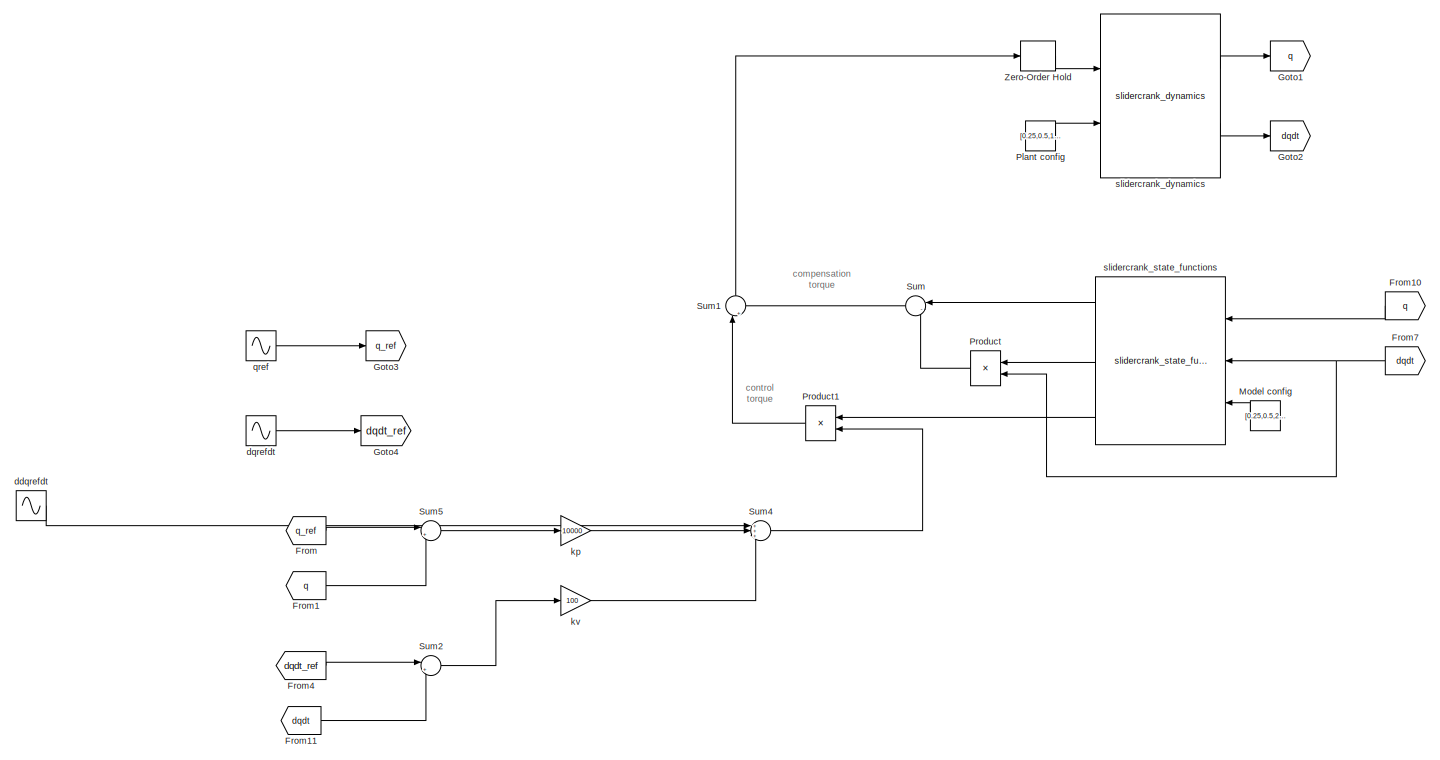
[diagram: root canvas - part 1/2, center side, full height]
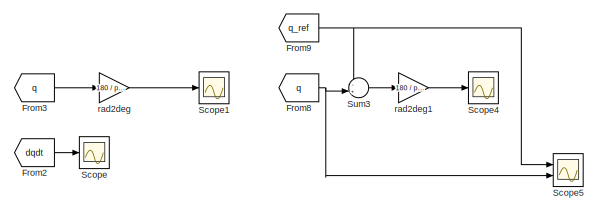
[diagram: root canvas - part 2/2, middle right region]
MODEL slx_b49f473e1fc3
KIND model
CONFIG AbsTol = auto
CONFIG EnableMultiTasking = off
CONFIG FixedStep = auto
CONFIG MaxStep = 1e-5
CONFIG MinStep = auto
CONFIG RelTol = 1e-3
CONFIG SampleTimeConstraint = Unconstrained
CONFIG Solver = VariableStepAuto
CONFIG SolverName = VariableStepAuto
CONFIG StartTime = 0.0
CONFIG StopTime = 5
BLOCK [From] From
  GotoTag = q_ref
BLOCK [From] From1
  GotoTag = q
BLOCK [From] From10
  GotoTag = q
BLOCK [From] From11
  GotoTag = dqdt
BLOCK [From] From2
  GotoTag = dqdt
BLOCK [From] From3
  GotoTag = q
BLOCK [From] From4
  GotoTag = dqdt_ref
BLOCK [From] From7
  GotoTag = dqdt
BLOCK [From] From8
  GotoTag = q
BLOCK [From] From9
  GotoTag = q_ref
BLOCK [Goto] Goto1
  GotoTag = q
BLOCK [Goto] Goto2
  GotoTag = dqdt
BLOCK [Goto] Goto3
  GotoTag = q_ref
BLOCK [Goto] Goto4
  GotoTag = dqdt_ref
BLOCK [Constant] Model config
  Value = [0.25,0.5,2,3,1]
BLOCK [Constant] Plant config
  Value = [0.25,0.5,1,2,0.5]
BLOCK [Product] Product
  InputSameDT = off
  OutDataTypeStr = Inherit: Inherit via internal rule
  Ports = [2, 1]
  RndMeth = Floor
  SaturateOnIntegerOverflow = off
BLOCK [Product] Product1
  InputSameDT = off
  OutDataTypeStr = Inherit: Inherit via internal rule
  Ports = [2, 1]
  RndMeth = Floor
  SaturateOnIntegerOverflow = off
BLOCK [Scope] Scope
  NumInputPorts = 1
  Ports = [1]
  ScopeSpecificationString = Simulink.scopes.TimeScopeBlockCfg('CurrentConfiguration', extmgr.ConfigurationSet(extmgr.Configuration('Core','General UI',true),extmgr.Configuration('Core','Source UI',true),extmgr.Configuration('Sources','WiredSimulink',true),extmgr.Configuration('Visuals','Time Domain',true,'SerializedDisplays',{struct('MinYLimReal','-13.56113','MaxYLimReal','22.05021','YLabelReal','','MinYLimMag','0.00000','Ma...<+1396ch>
BLOCK [Scope] Scope1
  NumInputPorts = 1
  Ports = [1]
  ScopeSpecificationString = Simulink.scopes.TimeScopeBlockCfg('CurrentConfiguration', extmgr.ConfigurationSet(extmgr.Configuration('Core','General UI',true),extmgr.Configuration('Core','Source UI',true),extmgr.Configuration('Sources','WiredSimulink',true,'DataLoggingVariableName','ScopeData1'),extmgr.Configuration('Visuals','Time Domain',true,'SerializedDisplays',{struct('MinYLimReal','-79.91159','MaxYLimReal','103.04022','Y...<+1424ch>
BLOCK [Scope] Scope4
  NumInputPorts = 1
  Ports = [1]
  ScopeSpecificationString = Simulink.scopes.TimeScopeBlockCfg('CurrentConfiguration', extmgr.ConfigurationSet(extmgr.Configuration('Core','General UI',true),extmgr.Configuration('Core','Source UI',true),extmgr.Configuration('Sources','WiredSimulink',true,'DataLoggingVariableName','ScopeData1'),extmgr.Configuration('Visuals','Time Domain',true,'SerializedDisplays',{struct('MinYLimReal','-0.0393','MaxYLimReal','0.2562','YLabel...<+1708ch>
BLOCK [Scope] Scope5
  NumInputPorts = 2
  Ports = [2]
  ScopeSpecificationString = Simulink.scopes.TimeScopeBlockCfg('CurrentConfiguration', extmgr.ConfigurationSet(extmgr.Configuration('Core','General UI',true),extmgr.Configuration('Core','Source UI',true),extmgr.Configuration('Sources','WiredSimulink',true,'DataLoggingVariableName','ScopeData2'),extmgr.Configuration('Visuals','Time Domain',true,'SerializedDisplays',{struct('MinYLimReal','-2.21297','MaxYLimReal','2.35435','YLab...<+1768ch>
BLOCK [Sum] Sum
  IconShape = round
  InputSameDT = off
  Inputs = |-+
  OutDataTypeStr = Inherit: Inherit via internal rule
  Ports = [2, 1]
  SaturateOnIntegerOverflow = off
BLOCK [Sum] Sum1
  IconShape = round
  InputSameDT = off
  Inputs = |++
  OutDataTypeStr = Inherit: Inherit via internal rule
  Ports = [2, 1]
  SaturateOnIntegerOverflow = off
BLOCK [Sum] Sum2
  IconShape = round
  InputSameDT = off
  Inputs = |+-
  OutDataTypeStr = Inherit: Inherit via internal rule
  Ports = [2, 1]
  SaturateOnIntegerOverflow = off
BLOCK [Sum] Sum3
  IconShape = round
  InputSameDT = off
  Inputs = -+|
  OutDataTypeStr = Inherit: Inherit via internal rule
  Ports = [2, 1]
  SaturateOnIntegerOverflow = off
BLOCK [Sum] Sum4
  IconShape = round
  InputSameDT = off
  Inputs = +++
  OutDataTypeStr = Inherit: Inherit via internal rule
  Ports = [3, 1]
  SaturateOnIntegerOverflow = off
BLOCK [Sum] Sum5
  IconShape = round
  InputSameDT = off
  Inputs = |+-
  OutDataTypeStr = Inherit: Inherit via internal rule
  Ports = [2, 1]
  SaturateOnIntegerOverflow = off
BLOCK [ZeroOrderHold] Zero-Order Hold
  SampleTime = 1e-3
BLOCK [Sin] ddqrefdt
  Amplitude = -100
  Frequency = 10
  Ports = [0, 1]
  SampleTime = 0
BLOCK [Sin] dqrefdt
  Amplitude = 10
  Frequency = 10
  Phase = pi()/2*10/2
  Ports = [0, 1]
  SampleTime = 0
BLOCK [Gain] kp
  Gain = 10000
  OutDataTypeStr = Inherit: Inherit via internal rule
  ParamDataTypeStr = Inherit: Inherit via internal rule
  SaturateOnIntegerOverflow = off
BLOCK [Gain] kv
  Gain = 100
  OutDataTypeStr = Inherit: Inherit via internal rule
  ParamDataTypeStr = Inherit: Inherit via internal rule
  SaturateOnIntegerOverflow = off
BLOCK [Sin] qref
  Frequency = 10
  Ports = [0, 1]
  SampleTime = 0
BLOCK [Gain] rad2deg
  Gain = 180 / pi()
  OutDataTypeStr = Inherit: Inherit via internal rule
  ParamDataTypeStr = Inherit: Inherit via internal rule
  SaturateOnIntegerOverflow = off
BLOCK [Gain] rad2deg1
  Gain = 180 / pi()
  OutDataTypeStr = Inherit: Inherit via internal rule
  ParamDataTypeStr = Inherit: Inherit via internal rule
  SaturateOnIntegerOverflow = off
BLOCK [Reference] slidercrank_dynamics  REF=slidercrank_basic_library_v1/slidercrank_dynamics  (lib defined in slx_64627835eefe)
  Ports = [2, 2]
  SourceBlock = slidercrank_basic_library_v1/slidercrank_dynamics
  SourceType = SubSystem
BLOCK [Reference] slidercrank_state_functions  REF=slidercrank_basic_library_v1/slidercrank_state_functions  (lib defined in slx_64627835eefe)
  Ports = [3, 3]
  SourceBlock = slidercrank_basic_library_v1/slidercrank_state_functions
  SourceType = SubSystem
ANNOTATION (root): compensation torque
ANNOTATION (root): control torque
LINE From10:1 -> slidercrank_state_functions:1
LINE From11:1 -> Sum2:2
LINE From1:1 -> Sum5:2
LINE From2:1 -> Scope:1
LINE From3:1 -> rad2deg:1
LINE From4:1 -> Sum2:1
NET From7:1 -> Product:2, slidercrank_state_functions:2
NET From8:1 -> Scope5:2, Sum3:2
NET From9:1 -> Scope5:1, Sum3:1
LINE From:1 -> Sum5:1
LINE Model config:1 -> slidercrank_state_functions:3
LINE Plant config:1 -> slidercrank_dynamics:2
LINE Product1:1 -> Sum1:1
LINE Product:1 -> Sum:2
LINE Sum1:1 -> Zero-Order Hold:1
LINE Sum2:1 -> kv:1
LINE Sum3:1 -> rad2deg1:1
LINE Sum4:1 -> Product1:2
LINE Sum5:1 -> kp:1
LINE Sum:1 -> Sum1:2
LINE Zero-Order Hold:1 -> slidercrank_dynamics:1
LINE ddqrefdt:1 -> Sum4:1
LINE dqrefdt:1 -> Goto4:1
LINE kp:1 -> Sum4:2
LINE kv:1 -> Sum4:3
LINE qref:1 -> Goto3:1
LINE rad2deg1:1 -> Scope4:1
LINE rad2deg:1 -> Scope1:1
LINE slidercrank_dynamics:1 -> Goto1:1
LINE slidercrank_dynamics:2 -> Goto2:1
LINE slidercrank_state_functions:1 -> Sum:1
LINE slidercrank_state_functions:2 -> Product:1
LINE slidercrank_state_functions:3 -> Product1:1
note: NET lines group one-source signal fan-out (src -> all destinations, sorted); 1:1 wires keep LINE
